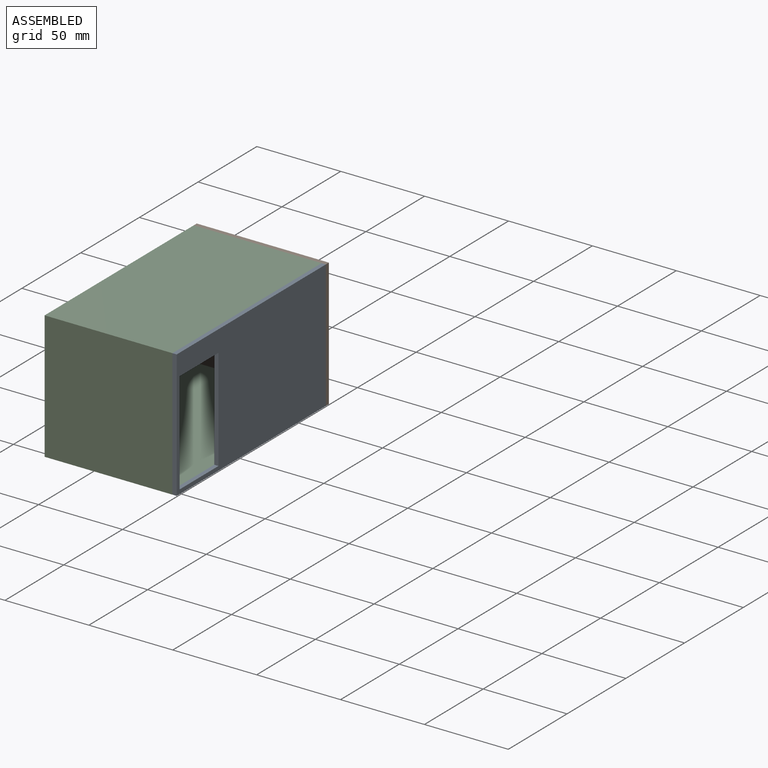
[diagram: assembled view]
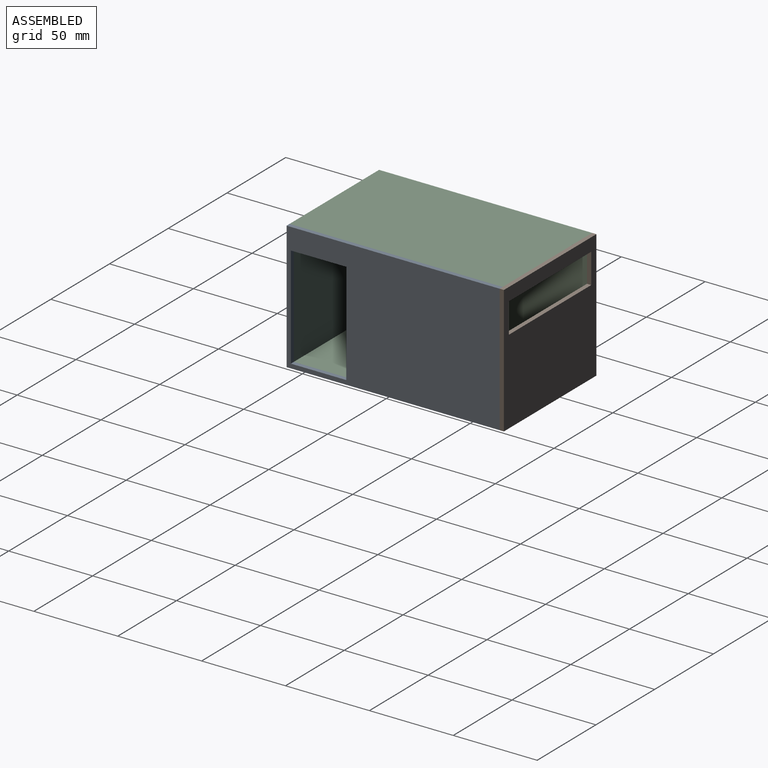
[diagram: assembled view, second angle]
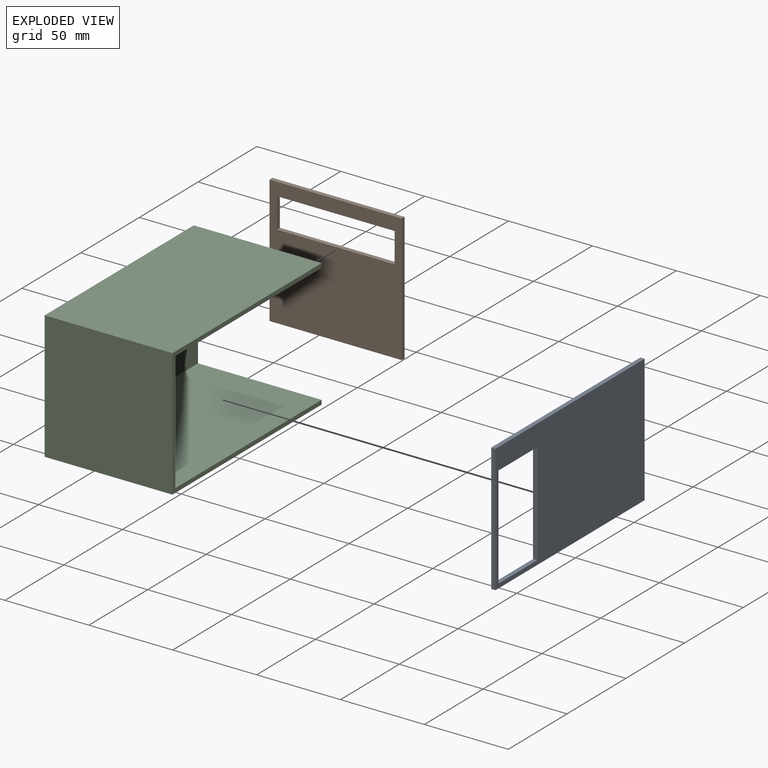
[diagram: exploded view]
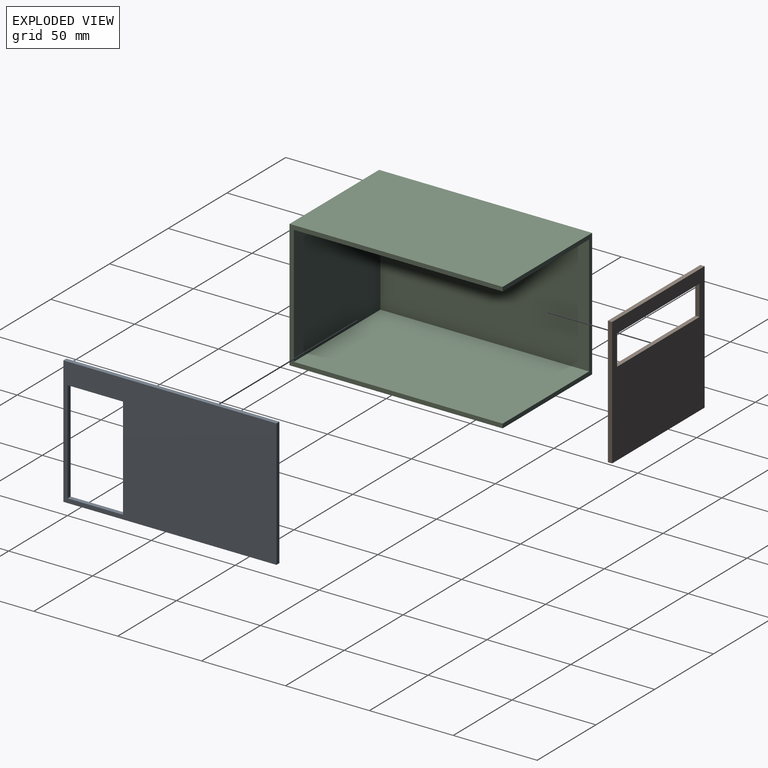
[diagram: exploded view, second angle]
ASSEMBLY  parts=3 mates=2
PART A: 10 faces, bbox 2.5x127x76.2 mm
  f0: plane 76.2x2.54mm, normal (0,-1,0), area 193.5mm2, adj f1,f7,f8,f9
  f1: plane 127x2.54mm, normal (0,0,-1), area 322.6mm2, adj f0,f2,f8,f9
  f2: plane 76.2x2.54mm, normal (0,1,0), area 193.5mm2, adj f1,f7,f8,f9
  f3: plane 60.96x2.54mm, normal (0,-1,0), area 154.8mm2, adj f4,f6,f8,f9
  f4: plane 33.02x2.54mm, normal (0,0,1), area 83.9mm2, adj f3,f5,f8,f9
  f5: plane 60.96x2.54mm, normal (0,1,0), area 154.8mm2, adj f4,f6,f8,f9
  f6: plane 33.02x2.54mm, normal (0,0,-1), area 83.9mm2, adj f3,f5,f8,f9
  f7: plane 127x2.54mm, normal (0,0,1), area 322.6mm2, adj f0,f2,f8,f9
  f8: plane 127x76.2mm, normal (1,0,0), area 7664.5mm2, adj f0,f1,f2,f3,f4,f5,f6,f7
  f9: plane 127x76.2mm, normal (-1,0,0), area 7664.5mm2, adj f0,f1,f2,f3,f4,f5,f6,f7
PART B: 10 faces, bbox 78.7x2.5x76.2 mm
  f0: plane 17.95x2.54mm, normal (-1,0,0), area 45.6mm2, adj f1,f7,f8,f9
  f1: plane 70.16x2.54mm, normal (0,0,1), area 178.2mm2, adj f0,f2,f8,f9
  f2: plane 17.95x2.54mm, normal (1,0,0), area 45.6mm2, adj f1,f7,f8,f9
  f3: plane 78.74x2.54mm, normal (0,0,-1), area 200mm2, adj f4,f6,f8,f9
  f4: plane 76.2x2.54mm, normal (1,0,0), area 193.5mm2, adj f3,f5,f8,f9
  f5: plane 78.74x2.54mm, normal (0,0,1), area 200mm2, adj f4,f6,f8,f9
  f6: plane 76.2x2.54mm, normal (-1,0,0), area 193.5mm2, adj f3,f5,f8,f9
  f7: plane 70.16x2.54mm, normal (0,0,-1), area 178.2mm2, adj f0,f2,f8,f9
  f8: plane 78.74x76.2mm, normal (0,-1,0), area 4740.6mm2, adj f0,f1,f2,f3,f4,f5,f6,f7
  f9: plane 78.74x76.2mm, normal (0,1,0), area 4740.6mm2, adj f0,f1,f2,f3,f4,f5,f6,f7
PART C: 10 faces, bbox 76.2x127x76.2 mm
  f0: plane 76.2x76.2mm, normal (0,1,0), area 567.7mm2, adj f1,f2,f3,f4,f6,f7,f8
  f1: plane 127x76.2mm, normal (1,0,0), area 825.8mm2, adj f0,f2,f4,f5,f6,f8,f9
  f2: plane 127x76.2mm, normal (0,0,1), area 9677.4mm2, adj f0,f1,f3,f5
  f3: plane 127x76.2mm, normal (-1,0,0), area 9677.4mm2, adj f0,f2,f4,f5
  f4: plane 127x76.2mm, normal (0,0,-1), area 9677.4mm2, adj f0,f1,f3,f5
  f5: plane 76.2x76.2mm, normal (0,-1,0), area 5806.4mm2, adj f1,f2,f3,f4
  f6: plane 124.46x73.66mm, normal (0,0,-1), area 9167.7mm2, adj f0,f1,f7,f9
  f7: plane 124.46x71.12mm, normal (1,0,0), area 8851.6mm2, adj f0,f6,f8,f9
  f8: plane 124.46x73.66mm, normal (0,0,1), area 9167.7mm2, adj f0,f1,f7,f9
  f9: plane 73.66x71.12mm, normal (0,1,0), area 5238.7mm2, adj f1,f6,f7,f8
PLACE A t=(-49.92,-91.44,-1.17)mm
PLACE B t=(-125.78,-28.03,-20.45)mm
PLACE C t=(-49.92,-30.57,-17.83)mm
MATE revolute B.f8 <-> C.f0  axis (0,-1,0) through (-126.12,-30.57,58.37)mm
MATE revolute A.f9 <-> C.f1  axis (-1,0,0) through (-49.92,-30.57,58.37)mm
